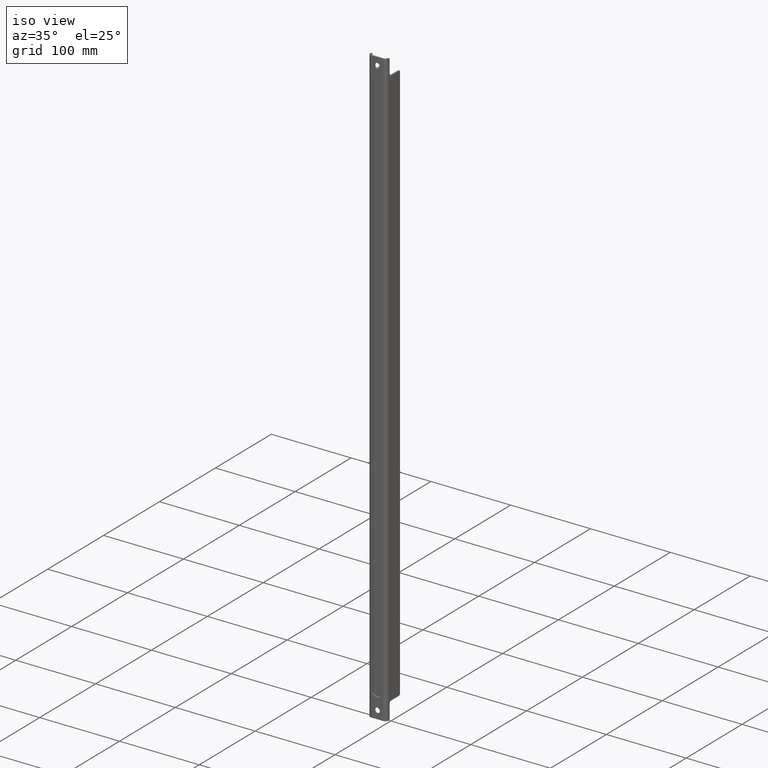
[diagram: clean part render]
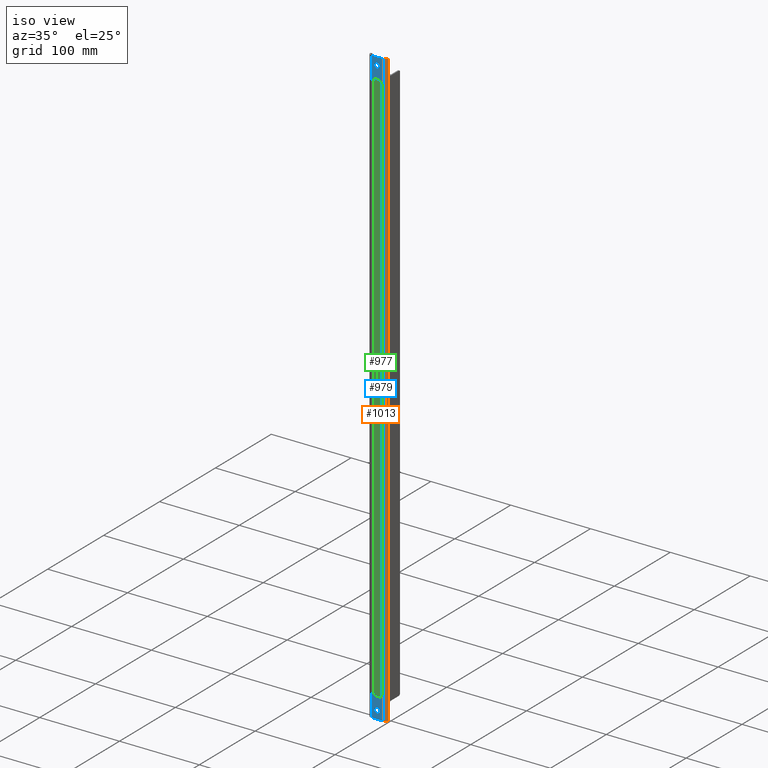
[diagram: same view with three faces highlighted in distinct colors, each labeled with its STEP entity id]
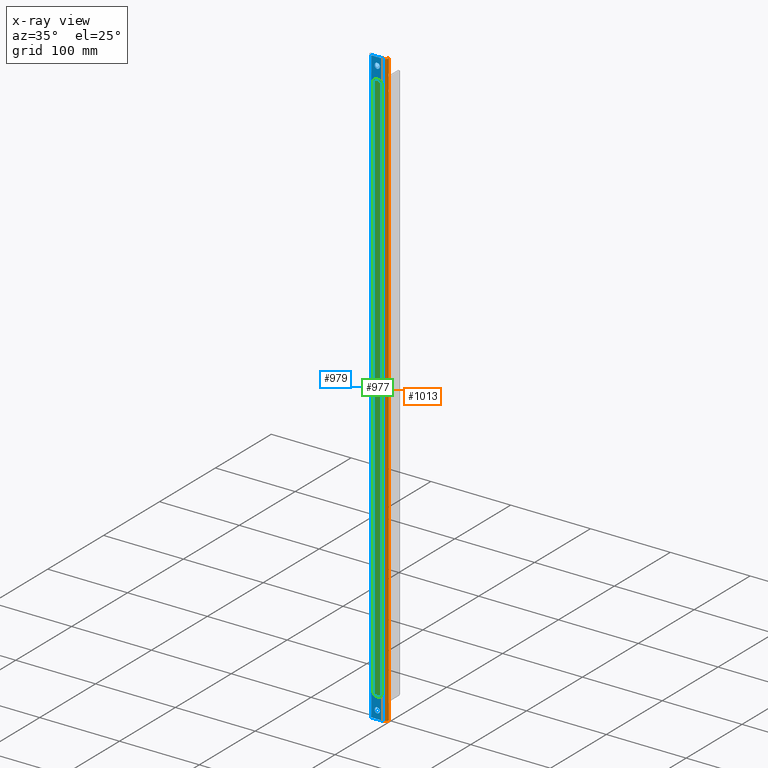
[diagram: x-ray of the same camera — body ghosted, the three highlighted faces saturated]
A machine part, iso view with three faces highlighted in distinct colors.
The next image is the same camera in x-ray (body ghosted, the three faces saturated) — at least one of them is partly hidden behind the body in this view.
Their STEP definitions:

[orange] entity #1013 — the highlighted cylindrical surface (edge-blend (fillet) strip) has radius 4 mm, axis along (0, 0, -1).
#33=LINE('',#1535,#121);
#90=LINE('',#1720,#178);
#121=VECTOR('',#1213,1000.);
#178=VECTOR('',#1410,1000.);
#215=CYLINDRICAL_SURFACE('',#1131,3.99999999999999);
#428=ORIENTED_EDGE('',*,*,#630,.T.);
#429=ORIENTED_EDGE('',*,*,#539,.T.);
#430=ORIENTED_EDGE('',*,*,#631,.F.);
#431=ORIENTED_EDGE('',*,*,#632,.F.);
#539=EDGE_CURVE('',#684,#682,#33,.T.);
#630=EDGE_CURVE('',#740,#684,#800,.T.);
#631=EDGE_CURVE('',#741,#682,#801,.T.);
#632=EDGE_CURVE('',#740,#741,#90,.T.);
#682=VERTEX_POINT('',#1533);
#684=VERTEX_POINT('',#1536);
#740=VERTEX_POINT('',#1717);
#741=VERTEX_POINT('',#1719);
#800=CIRCLE('',#1132,3.99999999999999);
#801=CIRCLE('',#1133,3.99999999999999);
#859=EDGE_LOOP('',(#428,#429,#430,#431));
#927=FACE_BOUND('',#859,.T.);
#1013=ADVANCED_FACE('',(#927),#215,.T.);
#1131=AXIS2_PLACEMENT_3D('',#1715,#1404,#1405);
#1132=AXIS2_PLACEMENT_3D('',#1716,#1406,#1407);
#1133=AXIS2_PLACEMENT_3D('',#1718,#1408,#1409);
#1213=DIRECTION('',(-3.43749899352818E-17,1.66533453693773E-16,-1.));
#1404=DIRECTION('',(8.93686180177302E-17,1.66533453693773E-16,-1.));
#1405=DIRECTION('',(4.06163832661068E-16,1.,1.66533453693773E-16));
#1406=DIRECTION('',(8.93686180177302E-17,1.66533453693773E-16,-1.));
#1407=DIRECTION('',(4.06163832661068E-16,1.,1.66533453693773E-16));
#1408=DIRECTION('',(8.93686180177302E-17,1.66533453693773E-16,-1.));
#1409=DIRECTION('',(4.06163832661068E-16,1.,1.66533453693773E-16));
#1410=DIRECTION('',(8.93686180177302E-17,1.31838984174237E-16,-1.));
#1533=CARTESIAN_POINT('',(7.49999999999998,-24.4999999999999,-375.));
#1535=CARTESIAN_POINT('',(7.5,-24.5000000000001,375.));
#1536=CARTESIAN_POINT('',(7.50000000000004,-24.5000000000001,375.));
#1715=CARTESIAN_POINT('',(7.50000000000002,-20.5,-375.));
#1716=CARTESIAN_POINT('',(7.50000000000001,-20.5000000000001,375.));
#1717=CARTESIAN_POINT('',(11.5,-20.5000000000001,375.));
#1718=CARTESIAN_POINT('',(7.5,-20.5,-375.));
#1719=CARTESIAN_POINT('',(11.5000000000001,-20.5,-375.));
#1720=CARTESIAN_POINT('',(11.5,-20.5,-2.42146940419665E-15));

[blue] entity #979 — the highlighted planar face has unit normal (0, 1, 0).
#28=LINE('',#1516,#116);
#29=LINE('',#1521,#117);
#30=LINE('',#1525,#118);
#31=LINE('',#1529,#119);
#32=LINE('',#1532,#120);
#33=LINE('',#1535,#121);
#34=LINE('',#1537,#122);
#35=LINE('',#1539,#123);
#116=VECTOR('',#1200,1000.);
#117=VECTOR('',#1203,1000.);
#118=VECTOR('',#1206,1000.);
#119=VECTOR('',#1209,1000.);
#120=VECTOR('',#1212,1000.);
#121=VECTOR('',#1213,1000.);
#122=VECTOR('',#1214,1000.);
#123=VECTOR('',#1215,1000.);
#243=ORIENTED_EDGE('',*,*,#529,.T.);
#244=ORIENTED_EDGE('',*,*,#530,.F.);
#245=ORIENTED_EDGE('',*,*,#531,.T.);
#246=ORIENTED_EDGE('',*,*,#532,.F.);
#247=ORIENTED_EDGE('',*,*,#533,.T.);
#248=ORIENTED_EDGE('',*,*,#534,.F.);
#249=ORIENTED_EDGE('',*,*,#535,.T.);
#250=ORIENTED_EDGE('',*,*,#536,.F.);
#251=ORIENTED_EDGE('',*,*,#537,.T.);
#252=ORIENTED_EDGE('',*,*,#538,.F.);
#253=ORIENTED_EDGE('',*,*,#539,.F.);
#254=ORIENTED_EDGE('',*,*,#540,.F.);
#255=ORIENTED_EDGE('',*,*,#541,.F.);
#256=ORIENTED_EDGE('',*,*,#542,.T.);
#529=EDGE_CURVE('',#673,#673,#761,.T.);
#530=EDGE_CURVE('',#674,#675,#28,.T.);
#531=EDGE_CURVE('',#674,#676,#762,.T.);
#532=EDGE_CURVE('',#677,#676,#29,.T.);
#533=EDGE_CURVE('',#677,#678,#763,.T.);
#534=EDGE_CURVE('',#679,#678,#30,.T.);
#535=EDGE_CURVE('',#679,#680,#764,.T.);
#536=EDGE_CURVE('',#681,#680,#31,.T.);
#537=EDGE_CURVE('',#681,#675,#765,.T.);
#538=EDGE_CURVE('',#682,#683,#32,.T.);
#539=EDGE_CURVE('',#684,#682,#33,.T.);
#540=EDGE_CURVE('',#685,#684,#34,.T.);
#541=EDGE_CURVE('',#683,#685,#35,.T.);
#542=EDGE_CURVE('',#686,#686,#766,.T.);
#673=VERTEX_POINT('',#1515);
#674=VERTEX_POINT('',#1517);
#675=VERTEX_POINT('',#1518);
#676=VERTEX_POINT('',#1520);
#677=VERTEX_POINT('',#1522);
#678=VERTEX_POINT('',#1524);
#679=VERTEX_POINT('',#1526);
#680=VERTEX_POINT('',#1528);
#681=VERTEX_POINT('',#1530);
#682=VERTEX_POINT('',#1533);
#683=VERTEX_POINT('',#1534);
#684=VERTEX_POINT('',#1536);
#685=VERTEX_POINT('',#1538);
#686=VERTEX_POINT('',#1541);
#761=CIRCLE('',#1059,3.29999999999997);
#762=CIRCLE('',#1060,5.);
#763=CIRCLE('',#1061,5.);
#764=CIRCLE('',#1062,5.);
#765=CIRCLE('',#1063,5.);
#766=CIRCLE('',#1064,3.29999999999997);
#817=EDGE_LOOP('',(#243));
#818=EDGE_LOOP('',(#244,#245,#246,#247,#248,#249,#250,#251));
#819=EDGE_LOOP('',(#252,#253,#254,#255));
#820=EDGE_LOOP('',(#256));
#885=FACE_BOUND('',#817,.T.);
#886=FACE_BOUND('',#818,.T.);
#887=FACE_BOUND('',#819,.T.);
#888=FACE_BOUND('',#820,.T.);
#948=PLANE('',#1058);
#979=ADVANCED_FACE('',(#885,#886,#887,#888),#948,.F.);
#1058=AXIS2_PLACEMENT_3D('',#1513,#1196,#1197);
#1059=AXIS2_PLACEMENT_3D('',#1514,#1198,#1199);
#1060=AXIS2_PLACEMENT_3D('',#1519,#1201,#1202);
#1061=AXIS2_PLACEMENT_3D('',#1523,#1204,#1205);
#1062=AXIS2_PLACEMENT_3D('',#1527,#1207,#1208);
#1063=AXIS2_PLACEMENT_3D('',#1531,#1210,#1211);
#1064=AXIS2_PLACEMENT_3D('',#1540,#1216,#1217);
#1196=DIRECTION('',(4.06163832661068E-16,1.,1.66533453693773E-16));
#1197=DIRECTION('',(-1.,4.06163832661068E-16,-8.93686180177302E-17));
#1198=DIRECTION('',(4.06163832661068E-16,1.,1.66533453693773E-16));
#1199=DIRECTION('',(-1.,4.06163832661068E-16,0.));
#1200=DIRECTION('',(-8.93686180177302E-17,-1.66533453693773E-16,1.));
#1201=DIRECTION('',(4.06163832661068E-16,1.,1.66533453693773E-16));
#1202=DIRECTION('',(-1.,4.06163832661068E-16,-8.93686180177302E-17));
#1203=DIRECTION('',(1.,-4.06163832661068E-16,8.93686180177302E-17));
#1204=DIRECTION('',(4.06163832661068E-16,1.,1.66533453693773E-16));
#1205=DIRECTION('',(-1.,4.06163832661068E-16,-8.93686180177302E-17));
#1206=DIRECTION('',(8.93686180177302E-17,1.66533453693773E-16,-1.));
#1207=DIRECTION('',(4.06163832661068E-16,1.,1.66533453693773E-16));
#1208=DIRECTION('',(-1.,4.06163832661068E-16,-8.93686180177302E-17));
#1209=DIRECTION('',(-1.,4.06163832661068E-16,-8.93686180177302E-17));
#1210=DIRECTION('',(4.06163832661068E-16,1.,1.66533453693773E-16));
#1211=DIRECTION('',(-1.,4.06163832661068E-16,-8.93686180177302E-17));
#1212=DIRECTION('',(-1.,4.06163832661068E-16,-8.93686180177302E-17));
#1213=DIRECTION('',(-3.43749899352818E-17,1.66533453693773E-16,-1.));
#1214=DIRECTION('',(1.,-4.06163832661068E-16,8.93686180177302E-17));
#1215=DIRECTION('',(3.32185076179638E-17,-1.66533453693773E-16,1.));
#1216=DIRECTION('',(4.06163832661068E-16,1.,1.66533453693773E-16));
#1217=DIRECTION('',(-1.,4.06163832661068E-16,0.));
#1513=CARTESIAN_POINT('',(-1.03104538151908E-14,-24.5,-3.71924713249427E-15));
#1514=CARTESIAN_POINT('',(1.34900564498441E-14,-24.5000000000001,365.));
#1515=CARTESIAN_POINT('',(-3.29999999999996,-24.5000000000001,365.));
#1516=CARTESIAN_POINT('',(6.00000000000001,-24.4999999999999,-350.));
#1517=CARTESIAN_POINT('',(6.00000000000001,-24.4999999999999,-345.));
#1518=CARTESIAN_POINT('',(5.99999999999995,-24.5000000000001,345.));
#1519=CARTESIAN_POINT('',(1.00000000000007,-24.4999999999999,-345.));
#1520=CARTESIAN_POINT('',(1.00000000000007,-24.4999999999999,-350.));
#1521=CARTESIAN_POINT('',(-5.99999999999993,-24.4999999999999,-350.));
#1522=CARTESIAN_POINT('',(-0.999999999999936,-24.4999999999999,-350.));
#1523=CARTESIAN_POINT('',(-0.999999999999936,-24.4999999999999,-345.));
#1524=CARTESIAN_POINT('',(-5.99999999999999,-24.4999999999999,-345.));
#1525=CARTESIAN_POINT('',(-5.99999999999999,-24.4999999999999,-350.));
#1526=CARTESIAN_POINT('',(-6.00000000000005,-24.5000000000001,345.));
#1527=CARTESIAN_POINT('',(-1.00000000000002,-24.5000000000001,345.));
#1528=CARTESIAN_POINT('',(-1.00000000000002,-24.5000000000001,350.));
#1529=CARTESIAN_POINT('',(-6.00000000000002,-24.5000000000001,350.));
#1530=CARTESIAN_POINT('',(0.999999999999986,-24.5000000000001,350.));
#1531=CARTESIAN_POINT('',(0.999999999999986,-24.5000000000001,345.));
#1532=CARTESIAN_POINT('',(-7.49999999999997,-24.4999999999999,-375.));
#1533=CARTESIAN_POINT('',(7.49999999999998,-24.4999999999999,-375.));
#1534=CARTESIAN_POINT('',(-7.49999999999997,-24.4999999999999,-375.));
#1535=CARTESIAN_POINT('',(7.5,-24.5000000000001,375.));
#1536=CARTESIAN_POINT('',(7.50000000000004,-24.5000000000001,375.));
#1537=CARTESIAN_POINT('',(-7.49999999999996,-24.5000000000001,375.));
#1538=CARTESIAN_POINT('',(-7.49999999999997,-24.5000000000001,375.));
#1539=CARTESIAN_POINT('',(-7.49999999999999,-24.5000000000001,375.));
#1540=CARTESIAN_POINT('',(1.34900564498441E-14,-24.4999999999999,-365.));
#1541=CARTESIAN_POINT('',(-3.29999999999996,-24.4999999999999,-365.));

[green] entity #977 — the highlighted planar face has unit normal (0, 1, -0).
#20=LINE('',#1486,#108);
#21=LINE('',#1491,#109);
#22=LINE('',#1495,#110);
#23=LINE('',#1499,#111);
#108=VECTOR('',#1176,1000.);
#109=VECTOR('',#1179,1000.);
#110=VECTOR('',#1182,1000.);
#111=VECTOR('',#1185,1000.);
#230=ORIENTED_EDGE('',*,*,#516,.F.);
#231=ORIENTED_EDGE('',*,*,#517,.T.);
#232=ORIENTED_EDGE('',*,*,#518,.F.);
#233=ORIENTED_EDGE('',*,*,#519,.T.);
#234=ORIENTED_EDGE('',*,*,#520,.F.);
#235=ORIENTED_EDGE('',*,*,#521,.T.);
#236=ORIENTED_EDGE('',*,*,#522,.F.);
#237=ORIENTED_EDGE('',*,*,#523,.T.);
#516=EDGE_CURVE('',#660,#661,#20,.T.);
#517=EDGE_CURVE('',#660,#662,#756,.T.);
#518=EDGE_CURVE('',#663,#662,#21,.T.);
#519=EDGE_CURVE('',#663,#664,#757,.T.);
#520=EDGE_CURVE('',#665,#664,#22,.T.);
#521=EDGE_CURVE('',#665,#666,#758,.T.);
#522=EDGE_CURVE('',#667,#666,#23,.T.);
#523=EDGE_CURVE('',#667,#661,#759,.T.);
#660=VERTEX_POINT('',#1487);
#661=VERTEX_POINT('',#1488);
#662=VERTEX_POINT('',#1490);
#663=VERTEX_POINT('',#1492);
#664=VERTEX_POINT('',#1494);
#665=VERTEX_POINT('',#1496);
#666=VERTEX_POINT('',#1498);
#667=VERTEX_POINT('',#1500);
#756=CIRCLE('',#1052,5.);
#757=CIRCLE('',#1053,5.);
#758=CIRCLE('',#1054,5.);
#759=CIRCLE('',#1055,5.);
#814=EDGE_LOOP('',(#230,#231,#232,#233,#234,#235,#236,#237));
#882=FACE_BOUND('',#814,.T.);
#946=PLANE('',#1051);
#977=ADVANCED_FACE('',(#882),#946,.F.);
#1051=AXIS2_PLACEMENT_3D('',#1485,#1174,#1175);
#1052=AXIS2_PLACEMENT_3D('',#1489,#1177,#1178);
#1053=AXIS2_PLACEMENT_3D('',#1493,#1180,#1181);
#1054=AXIS2_PLACEMENT_3D('',#1497,#1183,#1184);
#1055=AXIS2_PLACEMENT_3D('',#1501,#1186,#1187);
#1174=DIRECTION('',(4.06163832661068E-16,1.,-3.32494788514936E-15));
#1175=DIRECTION('',(-1.,4.06163832661068E-16,6.76398658185478E-32));
#1176=DIRECTION('',(-8.93686180177302E-17,-1.66533453693773E-16,1.));
#1177=DIRECTION('',(-4.06163832661068E-16,-1.,-1.66533453693773E-16));
#1178=DIRECTION('',(-1.,4.06163832661068E-16,-8.93686180177302E-17));
#1179=DIRECTION('',(-1.,4.06163832661068E-16,-8.93686180177302E-17));
#1180=DIRECTION('',(-4.06163832661068E-16,-1.,-1.66533453693773E-16));
#1181=DIRECTION('',(-1.,4.06163832661068E-16,-8.93686180177302E-17));
#1182=DIRECTION('',(8.93686180177302E-17,1.66533453693773E-16,-1.));
#1183=DIRECTION('',(-4.06163832661068E-16,-1.,-1.66533453693773E-16));
#1184=DIRECTION('',(-1.,4.06163832661068E-16,-8.93686180177302E-17));
#1185=DIRECTION('',(1.,-4.06163832661068E-16,8.93686180177302E-17));
#1186=DIRECTION('',(-4.06163832661068E-16,-1.,-1.66533453693773E-16));
#1187=DIRECTION('',(-1.,4.06163832661068E-16,-8.93686180177302E-17));
#1485=CARTESIAN_POINT('',(4.05776737694852E-15,-23.0000000000003,-3.28184349361263E-14));
#1486=CARTESIAN_POINT('',(-6.00000000000002,-23.,-4.00565866005999E-15));
#1487=CARTESIAN_POINT('',(-5.99999999999993,-22.9999999999999,-345.));
#1488=CARTESIAN_POINT('',(-6.00000000000005,-23.0000000000001,345.));
#1489=CARTESIAN_POINT('',(-0.999999999999935,-22.9999999999999,-345.));
#1490=CARTESIAN_POINT('',(-0.999999999999935,-22.9999999999999,-350.));
#1491=CARTESIAN_POINT('',(7.55634866785534E-14,-22.9999999999999,-350.));
#1492=CARTESIAN_POINT('',(1.00000000000007,-22.9999999999999,-350.));
#1493=CARTESIAN_POINT('',(1.00000000000007,-22.9999999999999,-345.));
#1494=CARTESIAN_POINT('',(6.00000000000001,-22.9999999999999,-345.));
#1495=CARTESIAN_POINT('',(5.99999999999998,-23.,-2.93323524384723E-15));
#1496=CARTESIAN_POINT('',(5.99999999999998,-23.0000000000001,345.));
#1497=CARTESIAN_POINT('',(0.999999999999987,-23.0000000000001,345.));
#1498=CARTESIAN_POINT('',(0.999999999999986,-23.0000000000001,350.));
#1499=CARTESIAN_POINT('',(-3.28745815182471E-15,-23.0000000000001,350.));
#1500=CARTESIAN_POINT('',(-1.00000000000002,-23.0000000000001,350.));
#1501=CARTESIAN_POINT('',(-1.00000000000002,-23.0000000000001,345.));